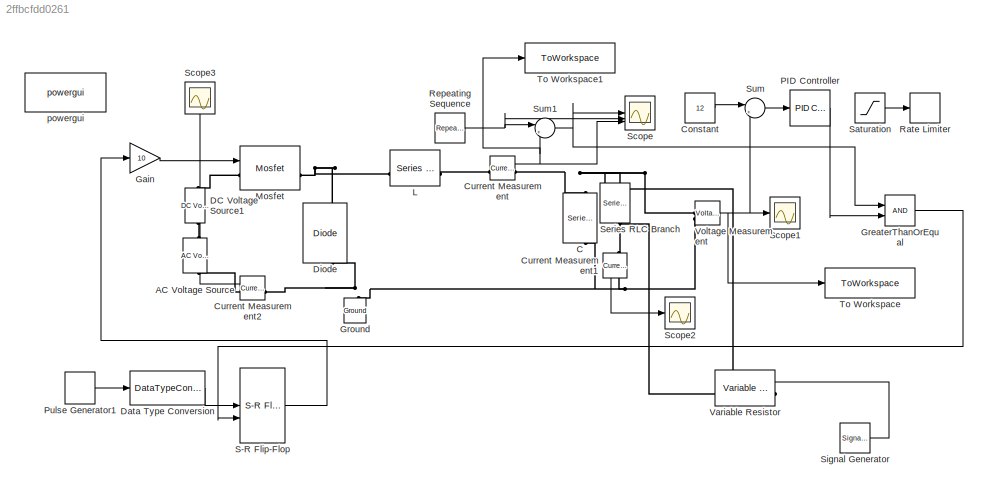
MODEL slx_2ffbcfdd0261
KIND model
CONFIG AbsTol = auto
CONFIG EnableMultiTasking = off
CONFIG FixedStep = auto
CONFIG MaxStep = auto
CONFIG MinStep = auto
CONFIG RelTol = 1e-3
CONFIG SampleTimeConstraint = Unconstrained
CONFIG SolverName = VariableStepAuto
CONFIG StartTime = 0.0
CONFIG StopTime = 0.5
BLOCK [Reference] AC Voltage Source  REF=spsACVoltageSourceLib/AC Voltage Source
  Commented = through
  LibrarySourceBlock = sps_lib/Sources/AC Voltage Source
  SourceBlock = spsACVoltageSourceLib/AC Voltage Source
  SourceType = AC Voltage Source
BLOCK [Reference] C  REF=spsSeriesRLCBranchLib/Series RLC Branch
  LibrarySourceBlock = sps_lib/Passives/Series RLC Branch
  NameLocation = left
  SourceBlock = spsSeriesRLCBranchLib/Series RLC Branch
  SourceType = Series RLC Branch
BLOCK [Constant] Constant
  Value = 12
BLOCK [Reference] Current Measurement  REF=spsCurrentMeasurementLib/Current Measurement
  LibrarySourceBlock = sps_lib/Sensors and Measurements/Current Measurement
  SourceBlock = spsCurrentMeasurementLib/Current Measurement
  SourceType = Current Measurement
  UserDataPersistent = on
BLOCK [Reference] Current Measurement1  REF=spsCurrentMeasurementLib/Current Measurement
  LibrarySourceBlock = sps_lib/Sensors and Measurements/Current Measurement
  NameLocation = left
  SourceBlock = spsCurrentMeasurementLib/Current Measurement
  SourceType = Current Measurement
  UserDataPersistent = on
BLOCK [Reference] Current Measurement2  REF=spsCurrentMeasurementLib/Current Measurement
  LibrarySourceBlock = sps_lib/Sensors and Measurements/Current Measurement
  NameLocation = top
  SourceBlock = spsCurrentMeasurementLib/Current Measurement
  SourceType = Current Measurement
  UserDataPersistent = on
BLOCK [Reference] DC Voltage Source1  REF=spsDCVoltageSourceLib/DC Voltage Source
  LibrarySourceBlock = sps_lib/Sources/DC Voltage Source
  SourceBlock = spsDCVoltageSourceLib/DC Voltage Source
  SourceType = DC Voltage Source
BLOCK [DataTypeConversion] Data Type Conversion
  OutDataTypeStr = boolean
  RndMeth = Floor
  SaturateOnIntegerOverflow = off
BLOCK [Reference] Diode  REF=spsDiodeLib/Diode
  LibrarySourceBlock = sps_lib/Power Electronics/Diode
  NameLocation = right
  SourceBlock = spsDiodeLib/Diode
  SourceType = Diode
BLOCK [Gain] Gain
  Gain = 10
BLOCK [RelationalOperator] GreaterThanOrEqual
  InputSameDT = off
  OutDataTypeStr = boolean
  RndMeth = Simplest
BLOCK [Reference] Ground  REF=spsGroundLib/Ground
  LibrarySourceBlock = sps_lib/Utilities/Ground
  NameLocation = right
  SourceBlock = spsGroundLib/Ground
  SourceType = Ground
BLOCK [Reference] L  REF=spsSeriesRLCBranchLib/Series RLC Branch
  LibrarySourceBlock = sps_lib/Passives/Series RLC Branch
  SourceBlock = spsSeriesRLCBranchLib/Series RLC Branch
  SourceType = Series RLC Branch
BLOCK [Reference] Mosfet  REF=spsMosfetLib/Mosfet
  LibrarySourceBlock = sps_lib/Power Electronics/Mosfet
  SourceBlock = spsMosfetLib/Mosfet
  SourceType = Mosfet
BLOCK [Reference] PID Controller  REF=slpidlib/PID Controller
  LibrarySourceBlock = simulink/Continuous/PID Controller
  SourceBlock = slpidlib/PID Controller
  SourceType = PID 1dof
BLOCK [DiscretePulseGenerator] Pulse Generator1
  Period = 5*10^-6
  PulseType = Time based
  PulseWidth = 10^-7
BLOCK [RateLimiter] Rate Limiter
  Commented = on
  RisingSlewLimit = 2400
  SampleTimeMode = inherited
BLOCK [Reference] Repeating Sequence  REF=simulink/Sources/Repeating
Sequence
  SourceBlock = simulink/Sources/Repeating\nSequence
  SourceType = Repeating table
BLOCK [Reference] S-R Flip-Flop  REF=simulink_extras/Flip Flops/S-R
Flip-Flop
  SourceBlock = simulink_extras/Flip Flops/S-R\nFlip-Flop
  SourceType = SRFlipFlop
BLOCK [Saturate] Saturation
  Commented = on
  LowerLimit = 0
  UpperLimit = 12
BLOCK [Scope] Scope
  ActiveDisplayYMaximum = 1.9173974878719304
  ActiveDisplayYMinimum = -0.21277757862844388
  Floating = off
  GraphicalSettings = {"Style":{"BackgroundColor":[0.12941176470588237,0.12941176470588237,0.12941176470588237],"AxesColor":[0.07058823529411765,0.07058823529411765,0.07058823529411765],"LabelsColor":[0.8509803921568627,0.8509803921568627,0.8509803921568627],"PreserveColors":false,"Visible":[true,true,true],"LineStyle":["-","-","-"],"LineWidth":[1.5,1.5,1.5],"BarWidth":[0.9,0.9,0.9],"LineColor":["auto","auto","auto"],"...<+2586ch>
  LayoutDimensionsString = [2,1]
  MultipleDisplayCache = [{"MaxYLimMag":1.9173974878719304,"MaxYLimReal":1.9173974878719304,"MinYLimMag":0,"MinYLimReal":-0.21277757862844388,"PlotAsMagnitudePhase":false,"ShowGrid":true,"ShowLegend":false,"Title":"%<SignalLabel>","YLabel":""},{"MaxYLimMag":1.9173974878719304,"MaxYLimReal":1.9967145043771231,"MinYLimMag":0,"MinYLimReal":-0.24632623266845544,"PlotAsMagnitudePhase":false,"ShowGrid":true,"ShowLegend":false,"...<+37ch>
  NumInputPorts = 3
  ScopeFrameLocation = window
  WasSavedAsWebScope = on
  WindowPosition = [0.000000,36.000000,1536.000000,793.000000,]
BLOCK [Scope] Scope1
  ActiveDisplayYMaximum = 14.082871608585775
  ActiveDisplayYMinimum = -1.5621021213654473
  ContainerLayout = {"WindowBounds":[128,48,1280,768],"gridDimensions":{"w":1,"h":1},"tileCount":1,"tileCoverage":1,"columnWeights":1,"rowWeights":1,"tileOccupancy":{"children":[{"id":"/Scope1"},{"id":"/Scope2"}]}}
  DataLoggingVariableName = ScopeData1
  Floating = off
  GraphicalSettings = {"Style":{"BackgroundColor":[0.12941176470588237,0.12941176470588237,0.12941176470588237],"AxesColor":[0.07058823529411765,0.07058823529411765,0.07058823529411765],"LabelsColor":[0.8509803921568627,0.8509803921568627,0.8509803921568627],"PreserveColors":false,"Visible":[true],"LineStyle":["-"],"LineWidth":[1.5],"BarWidth":[0.9],"LineColor":["auto"],"LineFaceAlpha":[1],"LineEdgeAlpha":[1],"Marker":...<+2021ch>
  MultipleDisplayCache = [{"MaxYLimMag":14.082871608585775,"MaxYLimReal":14.082871608585775,"MinYLimMag":0,"MinYLimReal":-1.5621021213654473,"PlotAsMagnitudePhase":false,"ShowGrid":true,"ShowLegend":true,"Title":"%<SignalLabel>","YLabel":""}]
  NumInputPorts = 1
  ScopeFrameLocation = container
  ShowLegend = on
  Visible = on
  WasSavedAsWebScope = on
  WindowPosition = [128.000000,48.000000,1280.000000,768.000000,]
BLOCK [Scope] Scope2
  ActiveDisplayYMaximum = 1.4095455966549657
  ActiveDisplayYMinimum = -0.12246787776125068
  ContainerLayout = {"WindowBounds":[128,48,1280,768],"gridDimensions":{"w":1,"h":1},"tileCount":1,"tileCoverage":1,"columnWeights":1,"rowWeights":1,"tileOccupancy":{"children":[{"id":"/Scope1"},{"id":"/Scope2"}]}}
  DataLoggingVariableName = ScopeData2
  Floating = off
  GraphicalSettings = {"Style":{"BackgroundColor":[0.12941176470588237,0.12941176470588237,0.12941176470588237],"AxesColor":[0.07058823529411765,0.07058823529411765,0.07058823529411765],"LabelsColor":[0.8509803921568627,0.8509803921568627,0.8509803921568627],"PreserveColors":false,"Visible":[true],"LineStyle":["-"],"LineWidth":[1.5],"BarWidth":[0.9],"LineColor":["auto"],"LineFaceAlpha":[1],"LineEdgeAlpha":[1],"Marker":...<+2027ch>
  MultipleDisplayCache = [{"MaxYLimMag":1.4143460292180847,"MaxYLimReal":1.4095455966549657,"MinYLimMag":0,"MinYLimReal":-0.12246787776125068,"PlotAsMagnitudePhase":false,"ShowGrid":true,"ShowLegend":false,"Title":"%<SignalLabel>","YLabel":""}]
  NumInputPorts = 1
  ScopeFrameLocation = container
  Visible = on
  WasSavedAsWebScope = on
  WindowPosition = [128.000000,48.000000,1280.000000,768.000000,]
BLOCK [Scope] Scope3
  ActiveDisplayYMaximum = 8.8526669559117188
  ActiveDisplayYMinimum = 1.8817825267058228
  DataLoggingVariableName = ScopeData3
  Floating = off
  GraphicalSettings = {"Style":{"BackgroundColor":[0.12941176470588237,0.12941176470588237,0.12941176470588237],"AxesColor":[0.07058823529411765,0.07058823529411765,0.07058823529411765],"LabelsColor":[0.8509803921568627,0.8509803921568627,0.8509803921568627],"PreserveColors":false,"Visible":[true],"LineStyle":["-"],"LineWidth":[1.5],"BarWidth":[0.9],"LineColor":["auto"],"LineFaceAlpha":[1],"LineEdgeAlpha":[1],"Marker":...<+2147ch>
  MultipleDisplayCache = [{"MaxYLimMag":136.01321299388732,"MaxYLimReal":8.8526669559117188,"MinYLimMag":0,"MinYLimReal":1.8817825267058228,"PlotAsMagnitudePhase":false,"ShowGrid":true,"ShowLegend":false,"Title":"%<SignalLabel>","YLabel":""}]
  NumInputPorts = 1
  ScopeFrameLocation = window
  WasSavedAsWebScope = on
  WindowPosition = [1.000000,49.000000,1536.000000,793.000000,]
BLOCK [Reference] Series RLC Branch  REF=spsSeriesRLCBranchLib/Series RLC Branch
  LibrarySourceBlock = sps_lib/Passives/Series RLC Branch
  NameLocation = left
  SourceBlock = spsSeriesRLCBranchLib/Series RLC Branch
  SourceType = Series RLC Branch
BLOCK [SignalGenerator] Signal Generator
  Amplitude = 11
  Commented = on
  Frequency = 0.5
  Units = rad/sec
BLOCK [Sum] Sum
  Inputs = |+-
BLOCK [Sum] Sum1
  Inputs = |++
BLOCK [ToWorkspace] To Workspace
  FixptAsFi = on
  MaxDataPoints = inf
  SampleTime = -1
  SaveFormat = Structure With Time
  VariableName = voltageoutput
BLOCK [ToWorkspace] To Workspace1
  FixptAsFi = on
  MaxDataPoints = inf
  SampleTime = -1
  SaveFormat = Structure With Time
  VariableName = iLoutput1
BLOCK [Reference] Variable Resistor  REF=spsVariableResistorLib/Variable Resistor
  Commented = on
  LibrarySourceBlock = sps_lib/Passives/Variable Resistor
  NameLocation = top
  SourceBlock = spsVariableResistorLib/Variable Resistor
  SourceType = Variable Resistor
BLOCK [Reference] Voltage Measurement  REF=spsVoltageMeasurementLib/Voltage Measurement
  LibrarySourceBlock = sps_lib/Sensors and Measurements/Voltage Measurement
  SourceBlock = spsVoltageMeasurementLib/Voltage Measurement
  SourceType = Voltage Measurement
  UserDataPersistent = on
BLOCK [Reference] powergui  REF=spspowerguiLib/powergui
  LibrarySourceBlock = sps_lib/powergui
  Priority = 1
  SourceBlock = spspowerguiLib/powergui
  SourceType = PSB option menu block
LINE Constant:1 -> Sum:1
LINE Current Measurement1:1 -> Scope2:1
LINE Current Measurement2:1 -> Scope3:1
NET Current Measurement:1 -> Scope:3, Sum1:2, To Workspace1:1
LINE Data Type Conversion:1 -> S-R Flip-Flop:1
LINE Gain:1 -> Mosfet:1
LINE GreaterThanOrEqual:1 -> S-R Flip-Flop:2
LINE PID Controller:1 -> GreaterThanOrEqual:2
LINE Pulse Generator1:1 -> Data Type Conversion:1
NET Repeating Sequence:1 -> Scope:2, Sum1:1
LINE S-R Flip-Flop:1 -> Gain:1
LINE Saturation:1 -> Rate Limiter:1
LINE Signal Generator:1 -> Variable Resistor:1
NET Sum1:1 -> GreaterThanOrEqual:1, Scope:1
LINE Sum:1 -> PID Controller:1
NET Voltage Measurement:1 -> Scope1:1, Sum:2, To Workspace:1
PLINE AC Voltage Source:LConn1 -- Current Measurement2:RConn1
PLINE AC Voltage Source:RConn1 -- DC Voltage Source1:LConn1
PNET net1: C:LConn1 -- Current Measurement:RConn1 -- Series RLC Branch:LConn1 -- Variable Resistor:LConn1 -- Voltage Measurement:LConn1
PNET net2: C:RConn1 -- Current Measurement1:RConn1 -- Current Measurement2:LConn1 -- Diode:LConn1 -- Ground:LConn1 -- Voltage Measurement:LConn2
PNET net3: Current Measurement1:LConn1 -- Series RLC Branch:RConn1 -- Variable Resistor:RConn1
PLINE Current Measurement:LConn1 -- L:RConn1
PLINE DC Voltage Source1:RConn1 -- Mosfet:LConn1
PNET net4: Diode:RConn1 -- L:LConn1 -- Mosfet:RConn1
note: NET lines group one-source signal fan-out (src -> all destinations, sorted); 1:1 wires keep LINE; PNET lines group multi-terminal physical nets as a canonical sorted terminal list (undirected conserving connections); 2-terminal nets keep the pairwise PLINE form
